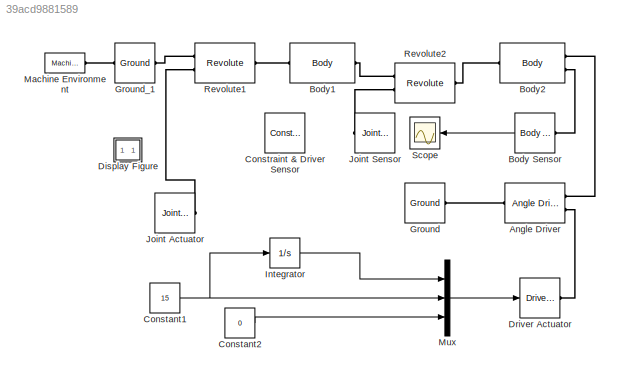
MODEL slx_39acd9881589
KIND model
CONFIG AbsTol = 1e-3
CONFIG EnableMultiTasking = on
CONFIG FixedStep = auto
CONFIG MaxStep = auto
CONFIG MinStep = auto
CONFIG RelTol = 1e-3
CONFIG SampleTimeConstraint = Unconstrained
CONFIG Solver = ode45
CONFIG SolverName = ode45
CONFIG StartTime = 0.0
CONFIG StopTime = 5.0
BLOCK [Reference] Angle Driver  REF=mblibv1/Constraints & 
Drivers/Angle Driver
  Ports = [0, 0, 0, 0, 0, 2, 1]
  SourceBlock = mblibv1/Constraints & \nDrivers/Angle Driver
  SourceProductBaseCode = MS
  SourceProductName = Simscape Multibody
  SourceType = Angle Driver
BLOCK [Reference] Body Sensor  REF=mblibv1/Sensors & 
Actuators/Body Sensor
  Ports = [0, 1, 0, 0, 0, 1]
  SourceBlock = mblibv1/Sensors & \nActuators/Body Sensor
  SourceProductBaseCode = MS
  SourceProductName = Simscape Multibody
  SourceType = Body Sensor
BLOCK [Reference] Body1  REF=mblibv1/Bodies/Body
  Ports = [0, 0, 0, 0, 0, 1, 1]
  SourceBlock = mblibv1/Bodies/Body
  SourceProductBaseCode = MS
  SourceProductName = Simscape Multibody
  SourceType = Body
BLOCK [Reference] Body2  REF=mblibv1/Bodies/Body
  Ports = [0, 0, 0, 0, 0, 1, 2]
  SourceBlock = mblibv1/Bodies/Body
  SourceProductBaseCode = MS
  SourceProductName = Simscape Multibody
  SourceType = Body
BLOCK [Constant] Constant1
  Value = 15
BLOCK [Constant] Constant2
  Value = 0
BLOCK [Reference] Constraint & Driver Sensor  REF=mblibv1/Sensors & 
Actuators/Constraint & Driver 
Sensor
  Ports = [0, 1, 0, 0, 0, 1]
  SourceBlock = mblibv1/Sensors & \nActuators/Constraint & Driver \nSensor
  SourceProductBaseCode = MS
  SourceProductName = Simscape Multibody
  SourceType = Constraint & Driver Sensor
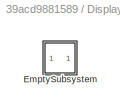
BLOCK [SubSystem] Display Figure
  Description = Help callback for actuated angle driver model: mech_angle_act.  Opens Help browser to Type 19 marker at documentation for this tutorial model.
  OpenFcn = helpview([docroot '/toolbox/physmod/mech/mech.map'], 'mech_angle_act_help');
  Ports = []
  RequestExecContextInheritance = off
  Tag = Help
BLOCK [SubSystem] Display Figure/EmptySubsystem
  Ports = []
  RequestExecContextInheritance = off
BLOCK [Reference] Driver Actuator  REF=mblibv1/Sensors & 
Actuators/Driver Actuator
  Ports = [1, 0, 0, 0, 0, 0, 1]
  SourceBlock = mblibv1/Sensors & \nActuators/Driver Actuator
  SourceProductBaseCode = MS
  SourceProductName = Simscape Multibody
  SourceType = Driver Actuator
BLOCK [Reference] Ground  REF=mblibv1/Bodies/Ground
  Ports = [0, 0, 0, 0, 0, 0, 1]
  SourceBlock = mblibv1/Bodies/Ground
  SourceProductBaseCode = MS
  SourceProductName = Simscape Multibody
  SourceType = Ground
  UserDataPersistent = on
BLOCK [Reference] Ground_1  REF=mblibv1/Bodies/Ground
  Ports = [0, 0, 0, 0, 0, 1, 1]
  SourceBlock = mblibv1/Bodies/Ground
  SourceProductBaseCode = MS
  SourceProductName = Simscape Multibody
  SourceType = Ground
  UserDataPersistent = on
BLOCK [Integrator] Integrator
  Ports = [1, 1]
BLOCK [Reference] Joint Actuator  REF=mblibv1/Sensors & 
Actuators/Joint Actuator
  Ports = [1, 0, 0, 0, 0, 0, 1]
  SourceBlock = mblibv1/Sensors & \nActuators/Joint Actuator
  SourceProductBaseCode = MS
  SourceProductName = Simscape Multibody
  SourceType = Joint Actuator
BLOCK [Reference] Joint Sensor  REF=mblibv1/Sensors & 
Actuators/Joint Sensor
  Ports = [0, 1, 0, 0, 0, 1]
  SourceBlock = mblibv1/Sensors & \nActuators/Joint Sensor
  SourceProductBaseCode = MS
  SourceProductName = Simscape Multibody
  SourceType = Joint Sensor
BLOCK [Reference] Machine Environment  REF=mblibv1/Bodies/Machine
Environment
  Ports = [0, 0, 0, 0, 0, 0, 1]
  SourceBlock = mblibv1/Bodies/Machine\nEnvironment
  SourceProductBaseCode = MS
  SourceProductName = Simscape Multibody
  SourceType = Machine Environment
  Tag = Factory ground
BLOCK [Mux] Mux
  DisplayOption = bar
  Inputs = 3
  Ports = [3, 1]
BLOCK [Reference] Revolute1  REF=mblibv1/Joints/Revolute
  Ports = [0, 0, 0, 0, 0, 2, 1]
  SourceBlock = mblibv1/Joints/Revolute
  SourceProductBaseCode = MS
  SourceProductName = Simscape Multibody
  SourceType = Revolute
BLOCK [Reference] Revolute2  REF=mblibv1/Joints/Revolute
  Ports = [0, 0, 0, 0, 0, 2, 1]
  SourceBlock = mblibv1/Joints/Revolute
  SourceProductBaseCode = MS
  SourceProductName = Simscape Multibody
  SourceType = Revolute
BLOCK [Scope] Scope
  Floating = off
  NumInputPorts = 1
  Ports = [1]
  ScopeSpecificationString = C++SS(StrPVP('Location','[614, 56, 938, 295]'),StrPVP('Open','off'),MxPVP('AxesTitles',53,'struct(''axes1'',''%<SignalLabel>'')'),StrPVP('TimeRange','6'),StrPVP('YMin','-2'),StrPVP('YMax','2'),StrPVP('SaveName','ScopeData1'),StrPVP('DataFormat','StructureWithTime'),StrPVP('BlockParamSampleTime','0'),StrPVP('LimitDataPoints','on'),StrPVP('DataLoggingDecimation','1'),StrPVP('BlockParamSampleInput','...<+31ch>
LINE Body Sensor:1 -> Scope:1
NET Constant1:1 -> Integrator:1, Mux:2
LINE Constant2:1 -> Mux:3
LINE Integrator:1 -> Mux:1
LINE Mux:1 -> Driver Actuator:1
PLINE Angle Driver:LConn1 -- Body2:RConn1
PLINE Angle Driver:LConn2 -- Driver Actuator:RConn1
PLINE Angle Driver:RConn1 -- Ground:RConn1
PLINE Body Sensor:LConn1 -- Body2:RConn2
PLINE Body1:LConn1 -- Revolute1:RConn1
PLINE Body1:RConn1 -- Revolute2:LConn1
PLINE Body2:LConn1 -- Revolute2:RConn1
PLINE Ground_1:LConn1 -- Machine Environment:RConn1
PLINE Ground_1:RConn1 -- Revolute1:LConn1
PLINE Joint Actuator:RConn1 -- Revolute1:LConn2
PLINE Joint Sensor:LConn1 -- Revolute2:LConn2
note: NET lines group one-source signal fan-out (src -> all destinations, sorted); 1:1 wires keep LINE
